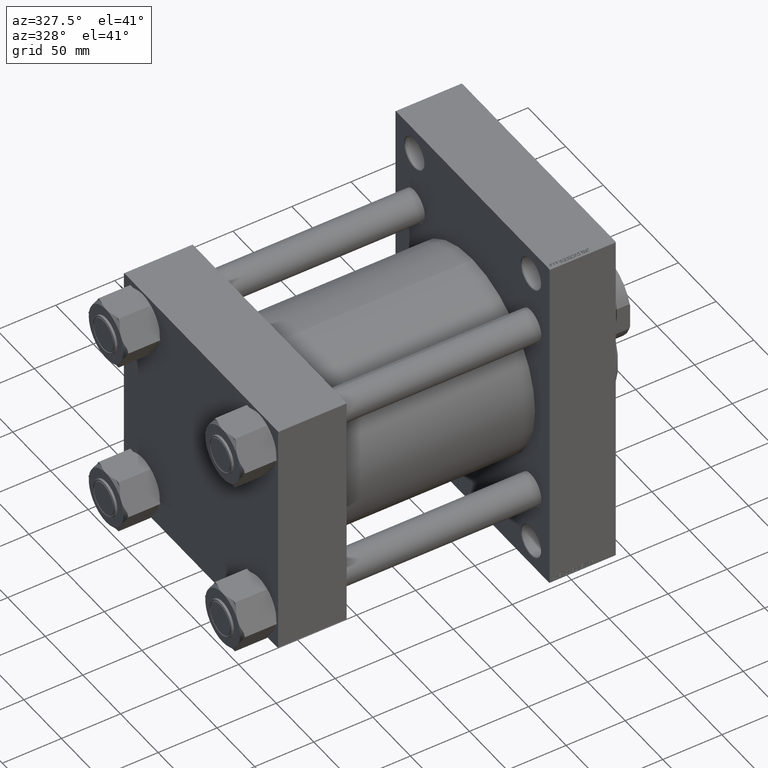
[diagram: clean part render]
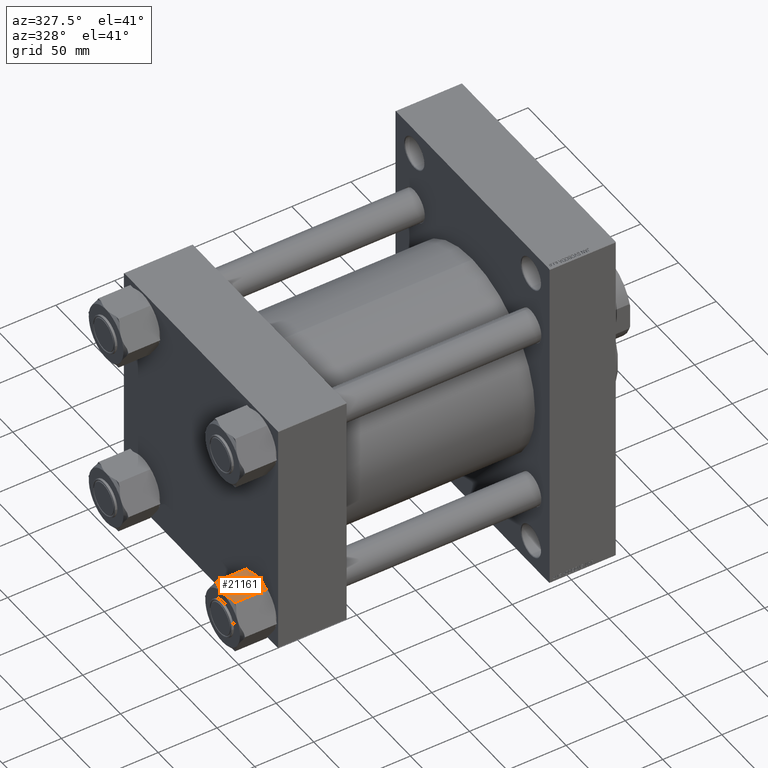
[diagram: same view with one face highlighted and labeled with its STEP entity id]
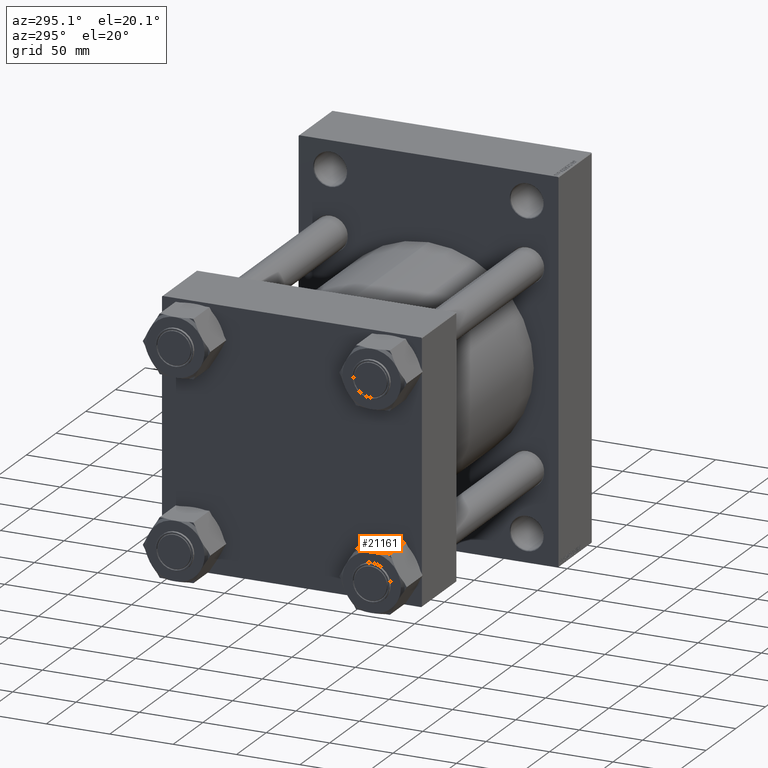
[diagram: same view with one face highlighted and labeled with its STEP entity id]
A machine part, auxiliary view. The second image highlights one B-rep face of the part: STEP entity #21161.
A second angle (auxiliary view) of the same face is appended — the face is thin or edge-on in the first view.
In plain terms, the highlighted planar face has unit normal (0, 0, -1).
Its self-contained STEP definition (entity closure, byte-faithful):
#646 = CARTESIAN_POINT ( 'NONE',  ( 5.801497649255006550, 23.05359624874177271, -0.7053567131665720025 ) ) ;
#667 = CARTESIAN_POINT ( 'NONE',  ( -1.690332161126401500, 23.05359624874177271, -31.00000000000000355 ) ) ;
#1076 = B_SPLINE_CURVE_WITH_KNOTS ( 'NONE', 3,
 ( #29866, #26255, #40951, #7915, #22631, #6976, #667, #15392 ),
 .UNSPECIFIED., .F., .F.,
 ( 4, 2, 2, 4 ),
 ( 0.03704433557245612879, 0.03955680769153651494, 0.04206927981061690108, 0.04709422404877768031 ),
 .UNSPECIFIED. ) ;
#1098 = CARTESIAN_POINT ( 'NONE',  ( 2.113373616412100642, 23.05359624874177271, -30.90705919660666368 ) ) ;
#1590 = CARTESIAN_POINT ( 'NONE',  ( 8.238500401260294481, 23.05359624874176916, -29.61483447804336322 ) ) ;
#2627 = VECTOR ( 'NONE', #36381, 1000.000000000000000 ) ;
#2901 = CARTESIAN_POINT ( 'NONE',  ( 9.808893158505055609, 23.05359624874177271, -2.000000000000000000 ) ) ;
#2927 = EDGE_CURVE ( 'NONE', #34591, #42714, #41654, .T. ) ;
#3103 = LINE ( 'NONE', #17829, #2627 ) ;
#3331 = CARTESIAN_POINT ( 'NONE',  ( -13.30999999999999872, 23.05359624874177271, -28.99999999999999645 ) ) ;
#4232 = VERTEX_POINT ( 'NONE', #17241 ) ;
#4441 = CARTESIAN_POINT ( 'NONE',  ( -9.808893158505068044, 23.05359624874177271, -28.99999999999999645 ) ) ;
#5012 = CARTESIAN_POINT ( 'NONE',  ( 0.000000000000000000, 23.05359624874177271, 0.000000000000000000 ) ) ;
#5167 = VERTEX_POINT ( 'NONE', #3331 ) ;
#5227 = DIRECTION ( 'NONE',  ( 1.000000000000000000, 0.000000000000000000, 0.000000000000000000 ) ) ;
#5321 = EDGE_CURVE ( 'NONE', #47436, #10964, #38269, .T. ) ;
#6205 = ORIENTED_EDGE ( 'NONE', *, *, #46653, .F. ) ;
#6215 = B_SPLINE_CURVE_WITH_KNOTS ( 'NONE', 3,
 ( #5012, #42146, #19735, #44804, #45045, #11769, #37816, #34439, #41186, #15868 ),
 .UNSPECIFIED., .F., .F.,
 ( 4, 2, 2, 2, 4 ),
 ( 0.04709422404877768031, 0.04834823400549315836, 0.04960224396220863641, 0.05211026387563959944, 0.05712630370250151163 ),
 .UNSPECIFIED. ) ;
#6225 = EDGE_CURVE ( 'NONE', #7930, #13851, #24488, .T. ) ;
#6610 = EDGE_LOOP ( 'NONE', ( #11031, #31343, #44741, #41415, #42014, #6205, #25271, #23884, #16400, #9426 ) ) ;
#6976 = CARTESIAN_POINT ( 'NONE',  ( -3.350210548520255571, 23.05359624874177271, -30.81266480856789869 ) ) ;
#7763 = FACE_OUTER_BOUND ( 'NONE', #6610, .T. ) ;
#7915 = CARTESIAN_POINT ( 'NONE',  ( -6.612214801278784471, 23.05359624874176916, -30.08273205772793091 ) ) ;
#7930 = VERTEX_POINT ( 'NONE', #2901 ) ;
#9426 = ORIENTED_EDGE ( 'NONE', *, *, #16308, .F. ) ;
#9644 = CARTESIAN_POINT ( 'NONE',  ( -13.30999999999999872, 23.05359624874177271, -28.99999999999999645 ) ) ;
#9654 = CARTESIAN_POINT ( 'NONE',  ( 0.000000000000000000, 23.05359624874177271, 0.000000000000000000 ) ) ;
#9809 = EDGE_CURVE ( 'NONE', #5167, #21701, #13999, .T. ) ;
#10587 = CARTESIAN_POINT ( 'NONE',  ( 13.31000000000000227, 23.05359624874177271, -2.000000000000001776 ) ) ;
#10964 = VERTEX_POINT ( 'NONE', #26998 ) ;
#11031 = ORIENTED_EDGE ( 'NONE', *, *, #9809, .F. ) ;
#11769 = CARTESIAN_POINT ( 'NONE',  ( -3.366747807636247813, 23.05359624874176561, -0.2297327368970412120 ) ) ;
#11982 = CARTESIAN_POINT ( 'NONE',  ( 0.000000000000000000, 23.05359624874177271, 0.000000000000000000 ) ) ;
#12231 = CARTESIAN_POINT ( 'NONE',  ( 3.350210548520252907, 23.05359624874177626, -0.1873351914320967315 ) ) ;
#12451 = CARTESIAN_POINT ( 'NONE',  ( 0.8470567002417603852, 23.05359624874177626, -30.98831017079349337 ) ) ;
#13024 = VECTOR ( 'NONE', #46795, 1000.000000000000000 ) ;
#13851 = VERTEX_POINT ( 'NONE', #9654 ) ;
#13999 = LINE ( 'NONE', #9644, #13024 ) ;
#15366 = CARTESIAN_POINT ( 'NONE',  ( 1.690332161126403276, 23.05359624874177626, -2.439454888092385470E-16 ) ) ;
#15392 = CARTESIAN_POINT ( 'NONE',  ( 0.000000000000000000, 23.05359624874177271, -31.00000000000000000 ) ) ;
#15868 = CARTESIAN_POINT ( 'NONE',  ( -9.808893158505055609, 23.05359624874177271, -2.000000000000000000 ) ) ;
#16094 = CARTESIAN_POINT ( 'NONE',  ( 8.222377524857016340, 23.05359624874177271, -1.410427084452076096 ) ) ;
#16308 = EDGE_CURVE ( 'NONE', #21701, #4232, #1076, .T. ) ;
#16309 = CARTESIAN_POINT ( 'NONE',  ( 0.4218342054646869732, 23.05359624874177271, -31.00000000000001066 ) ) ;
#16314 = VERTEX_POINT ( 'NONE', #10587 ) ;
#16372 = EDGE_CURVE ( 'NONE', #13851, #34591, #6215, .T. ) ;
#16400 = ORIENTED_EDGE ( 'NONE', *, *, #17513, .F. ) ;
#17241 = CARTESIAN_POINT ( 'NONE',  ( 0.000000000000000000, 23.05359624874177271, -31.00000000000000000 ) ) ;
#17513 = EDGE_CURVE ( 'NONE', #4232, #47436, #31111, .T. ) ;
#17582 = EDGE_CURVE ( 'NONE', #5167, #42714, #20636, .T. ) ;
#17829 = CARTESIAN_POINT ( 'NONE',  ( -13.30999999999999872, 23.05359624874177271, -2.000000000000001776 ) ) ;
#19209 = CARTESIAN_POINT ( 'NONE',  ( 6.641506094493665024, 23.05359624874177626, -30.11551404775776319 ) ) ;
#19240 = CARTESIAN_POINT ( 'NONE',  ( 9.808893158505055609, 23.05359624874177271, -2.000000000000000000 ) ) ;
#19487 = CARTESIAN_POINT ( 'NONE',  ( -13.30999999999999872, 23.05359624874177271, -2.000000000000001776 ) ) ;
#19735 = CARTESIAN_POINT ( 'NONE',  ( -0.8470567002417573876, 23.05359624874177271, -0.01168982920650373826 ) ) ;
#20304 = DIRECTION ( 'NONE',  ( 0.000000000000000000, -1.000000000000000000, 0.000000000000000000 ) ) ;
#20636 = LINE ( 'NONE', #21356, #39481 ) ;
#20735 = CARTESIAN_POINT ( 'NONE',  ( 13.31000000000000405, 23.05359624874177271, -31.00000000000000000 ) ) ;
#21161 = ADVANCED_FACE ( 'NONE', ( #7763 ), #22485, .F. ) ;
#21356 = CARTESIAN_POINT ( 'NONE',  ( -13.30999999999999872, 23.05359624874177271, -31.00000000000000000 ) ) ;
#21701 = VERTEX_POINT ( 'NONE', #4441 ) ;
#22089 = VECTOR ( 'NONE', #5227, 1000.000000000000000 ) ;
#22485 = PLANE ( 'NONE',  #28230 ) ;
#22631 = CARTESIAN_POINT ( 'NONE',  ( -5.801497649255011879, 23.05359624874177271, -30.29464328683342700 ) ) ;
#23058 = CARTESIAN_POINT ( 'NONE',  ( 3.366747807636250922, 23.05359624874177626, -30.77026726310295501 ) ) ;
#23302 = CARTESIAN_POINT ( 'NONE',  ( 4.192182187841021701, 23.05359624874177271, -30.63552287451819112 ) ) ;
#23596 = CARTESIAN_POINT ( 'NONE',  ( -9.808893158505055609, 23.05359624874177271, -2.000000000000000000 ) ) ;
#23884 = ORIENTED_EDGE ( 'NONE', *, *, #5321, .F. ) ;
#24113 = CARTESIAN_POINT ( 'NONE',  ( 9.808893158505068044, 23.05359624874177271, -28.99999999999999645 ) ) ;
#24393 = DIRECTION ( 'NONE',  ( 0.000000000000000000, -0.000000000000000000, -1.000000000000000000 ) ) ;
#24488 = B_SPLINE_CURVE_WITH_KNOTS ( 'NONE', 3,
 ( #19240, #30327, #16094, #41404, #646, #12231, #15366, #11982 ),
 .UNSPECIFIED., .F., .F.,
 ( 4, 2, 2, 4 ),
 ( 0.03704433557245614961, 0.03955680769153653575, 0.04206927981061691496, 0.04709422404877768031 ),
 .UNSPECIFIED. ) ;
#24548 = EDGE_CURVE ( 'NONE', #10964, #16314, #27735, .T. ) ;
#25271 = ORIENTED_EDGE ( 'NONE', *, *, #24548, .F. ) ;
#26255 = CARTESIAN_POINT ( 'NONE',  ( -9.024432966208907558, 23.05359624874177271, -29.30712901002065252 ) ) ;
#26448 = CARTESIAN_POINT ( 'NONE',  ( 0.000000000000000000, 23.05359624874177271, -31.00000000000000000 ) ) ;
#26998 = CARTESIAN_POINT ( 'NONE',  ( 13.31000000000000227, 23.05359624874177271, -28.99999999999999645 ) ) ;
#27735 = LINE ( 'NONE', #20735, #31314 ) ;
#27904 = CARTESIAN_POINT ( 'NONE',  ( -13.30999999999999872, 23.05359624874177271, -28.99999999999999645 ) ) ;
#28230 = AXIS2_PLACEMENT_3D ( 'NONE', #44656, #20304, #24393 ) ;
#29866 = CARTESIAN_POINT ( 'NONE',  ( -9.808893158505068044, 23.05359624874177271, -28.99999999999999645 ) ) ;
#30327 = CARTESIAN_POINT ( 'NONE',  ( 9.024432966208889795, 23.05359624874177626, -1.692870989979337271 ) ) ;
#31111 = B_SPLINE_CURVE_WITH_KNOTS ( 'NONE', 3,
 ( #26448, #16309, #12451, #41865, #1098, #23058, #23302, #19209, #1590, #33907 ),
 .UNSPECIFIED., .F., .F.,
 ( 4, 2, 2, 2, 4 ),
 ( 0.04709422404877768031, 0.04834823400549315836, 0.04960224396220863641, 0.05211026387563959250, 0.05712630370250151163 ),
 .UNSPECIFIED. ) ;
#31314 = VECTOR ( 'NONE', #35448, 1000.000000000000000 ) ;
#31343 = ORIENTED_EDGE ( 'NONE', *, *, #17582, .T. ) ;
#33907 = CARTESIAN_POINT ( 'NONE',  ( 9.808893158505068044, 23.05359624874177271, -28.99999999999999645 ) ) ;
#34439 = CARTESIAN_POINT ( 'NONE',  ( -6.641506094493657919, 23.05359624874177271, -0.8844859522422369169 ) ) ;
#34591 = VERTEX_POINT ( 'NONE', #23596 ) ;
#35448 = DIRECTION ( 'NONE',  ( -0.000000000000000000, -0.000000000000000000, 1.000000000000000000 ) ) ;
#36381 = DIRECTION ( 'NONE',  ( -1.000000000000000000, 0.000000000000000000, 0.000000000000000000 ) ) ;
#37409 = VECTOR ( 'NONE', #37799, 1000.000000000000000 ) ;
#37799 = DIRECTION ( 'NONE',  ( -1.000000000000000000, 0.000000000000000000, 0.000000000000000000 ) ) ;
#37816 = CARTESIAN_POINT ( 'NONE',  ( -4.192182187841015484, 23.05359624874176916, -0.3644771254818151562 ) ) ;
#38269 = LINE ( 'NONE', #27904, #22089 ) ;
#39481 = VECTOR ( 'NONE', #42809, 1000.000000000000000 ) ;
#40951 = CARTESIAN_POINT ( 'NONE',  ( -8.222377524857032327, 23.05359624874177271, -29.58957291554791524 ) ) ;
#41186 = CARTESIAN_POINT ( 'NONE',  ( -8.238500401260287376, 23.05359624874176561, -1.385165521956633006 ) ) ;
#41404 = CARTESIAN_POINT ( 'NONE',  ( 6.612214801278774701, 23.05359624874176916, -0.9172679422720635412 ) ) ;
#41415 = ORIENTED_EDGE ( 'NONE', *, *, #16372, .F. ) ;
#41654 = LINE ( 'NONE', #19487, #37409 ) ;
#41865 = CARTESIAN_POINT ( 'NONE',  ( 1.693046291327863440, 23.05359624874176916, -30.94177411052105597 ) ) ;
#42014 = ORIENTED_EDGE ( 'NONE', *, *, #6225, .F. ) ;
#42146 = CARTESIAN_POINT ( 'NONE',  ( -0.4218342054646835870, 23.05359624874177271, 4.573977915173220598E-17 ) ) ;
#42714 = VERTEX_POINT ( 'NONE', #46964 ) ;
#42809 = DIRECTION ( 'NONE',  ( -0.000000000000000000, -0.000000000000000000, 1.000000000000000000 ) ) ;
#44656 = CARTESIAN_POINT ( 'NONE',  ( -13.30999999999999872, 23.05359624874177271, -31.00000000000000000 ) ) ;
#44741 = ORIENTED_EDGE ( 'NONE', *, *, #2927, .F. ) ;
#44804 = CARTESIAN_POINT ( 'NONE',  ( -1.693046291327859665, 23.05359624874176561, -0.05822588947894232619 ) ) ;
#45045 = CARTESIAN_POINT ( 'NONE',  ( -2.113373616412097533, 23.05359624874177626, -0.09294080339333840590 ) ) ;
#46653 = EDGE_CURVE ( 'NONE', #16314, #7930, #3103, .T. ) ;
#46795 = DIRECTION ( 'NONE',  ( 1.000000000000000000, 0.000000000000000000, 0.000000000000000000 ) ) ;
#46964 = CARTESIAN_POINT ( 'NONE',  ( -13.30999999999999872, 23.05359624874177271, -2.000000000000001776 ) ) ;
#47436 = VERTEX_POINT ( 'NONE', #24113 ) ;